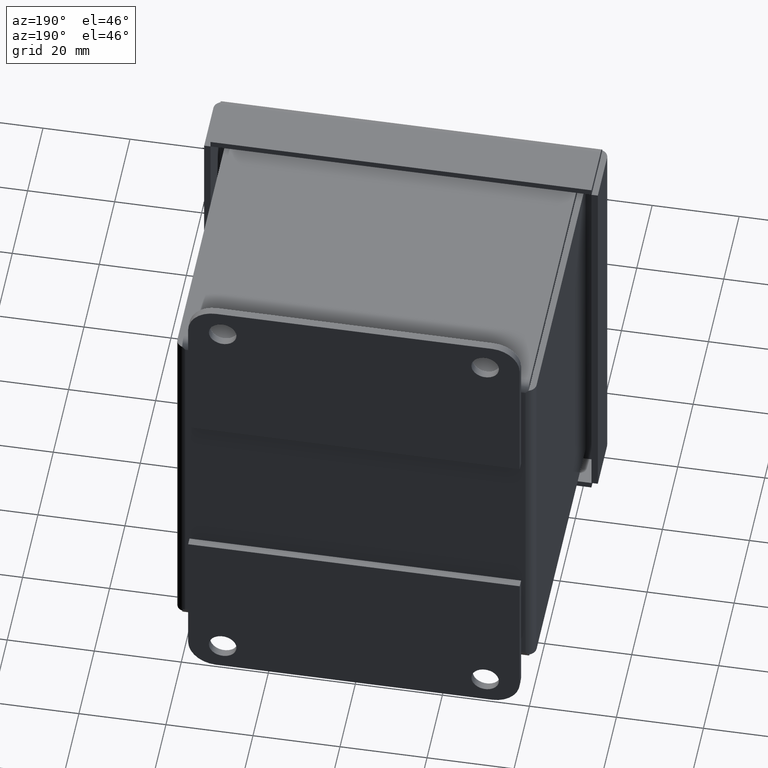
[diagram: clean part render]
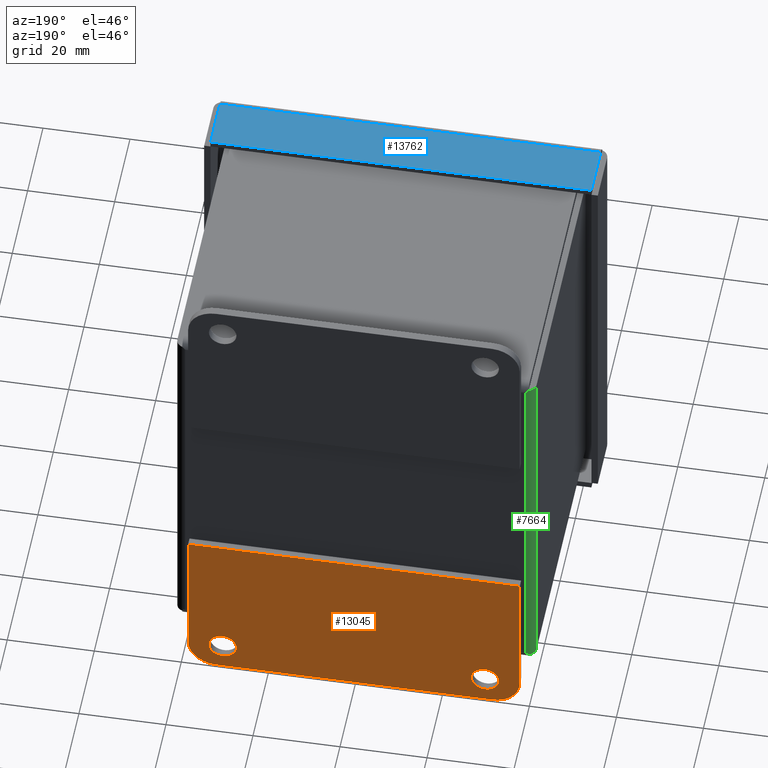
[diagram: same view with three faces highlighted in distinct colors, each labeled with its STEP entity id]
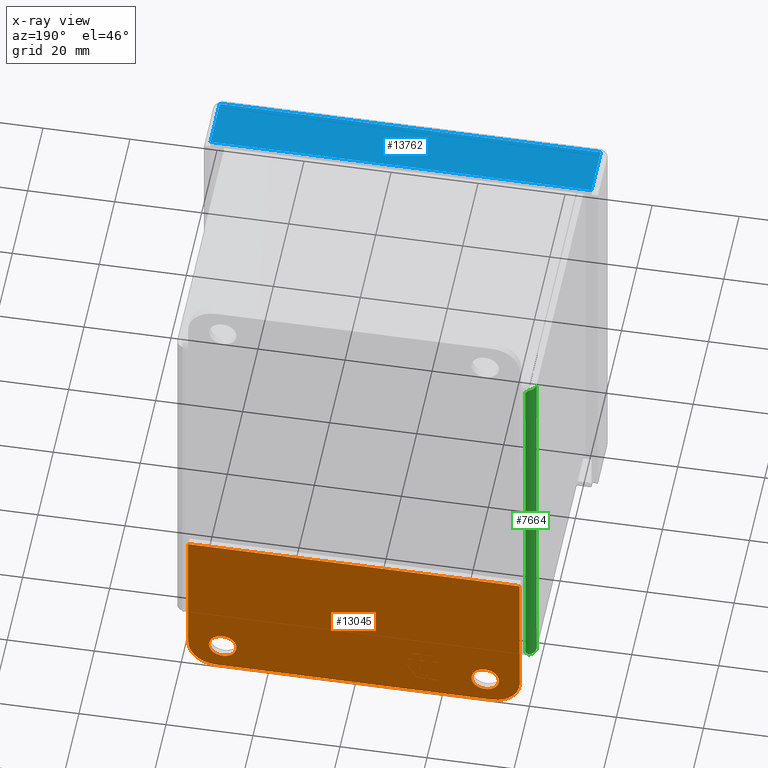
[diagram: x-ray of the same camera — body ghosted, the three highlighted faces saturated]
A machine part, auxiliary view with three faces highlighted in distinct colors.
The next image is the same camera in x-ray (body ghosted, the three faces saturated) — at least one of them is partly hidden behind the body in this view.
Their STEP definitions:

[orange] entity #13045 — the highlighted planar face has unit normal (0, 1, -0).
#64 = DIRECTION ( 'NONE',  ( 1.000000000000000000, -2.731847993664262725E-16, 0.0000000000000000000 ) ) ;
#83 = VECTOR ( 'NONE', #7194, 39.37007874015748143 ) ;
#97 = VECTOR ( 'NONE', #11660, 39.37007874015748143 ) ;
#181 = VERTEX_POINT ( 'NONE', #6197 ) ;
#269 = EDGE_CURVE ( 'NONE', #10582, #181, #4074, .T. ) ;
#354 = DIRECTION ( 'NONE',  ( 2.723529352635569909E-16, 1.000000000000000000, -2.106062720053089898E-16 ) ) ;
#583 = ORIENTED_EDGE ( 'NONE', *, *, #4471, .T. ) ;
#679 = CARTESIAN_POINT ( 'NONE',  ( 1.499999999999998002, 0.07199999999999971700, -2.000000000000000444 ) ) ;
#869 = CARTESIAN_POINT ( 'NONE',  ( -1.500000000000001998, 0.07200000000000053579, -2.000000000000000000 ) ) ;
#935 = DIRECTION ( 'NONE',  ( 2.272474258177640440E-16, 2.106062720053089158E-16, 1.000000000000000000 ) ) ;
#1052 = AXIS2_PLACEMENT_3D ( 'NONE', #12201, #9068, #3677 ) ;
#1094 = VERTEX_POINT ( 'NONE', #1204 ) ;
#1100 = DIRECTION ( 'NONE',  ( 1.000000000000000000, -2.731847993664262725E-16, 0.0000000000000000000 ) ) ;
#1153 = ORIENTED_EDGE ( 'NONE', *, *, #11666, .T. ) ;
#1199 = ORIENTED_EDGE ( 'NONE', *, *, #13260, .T. ) ;
#1204 = CARTESIAN_POINT ( 'NONE',  ( 1.062499999999998002, 0.07199999999999984190, -2.000000000000000444 ) ) ;
#1266 = VERTEX_POINT ( 'NONE', #8545 ) ;
#1312 = VECTOR ( 'NONE', #11559, 39.37007874015748143 ) ;
#1930 = LINE ( 'NONE', #869, #5710 ) ;
#1944 = AXIS2_PLACEMENT_3D ( 'NONE', #13179, #354, #7568 ) ;
#2197 = ORIENTED_EDGE ( 'NONE', *, *, #269, .T. ) ;
#2207 = ORIENTED_EDGE ( 'NONE', *, *, #5866, .T. ) ;
#2636 = CIRCLE ( 'NONE', #4449, 0.2500000000000000555 ) ;
#2914 = DIRECTION ( 'NONE',  ( -2.723529352635569909E-16, -1.000000000000000000, 2.106062720053089898E-16 ) ) ;
#3046 = CARTESIAN_POINT ( 'NONE',  ( 1.249999999999998224, 0.07200000000000005007, -0.7500000000000003331 ) ) ;
#3080 = EDGE_CURVE ( 'NONE', #13169, #6467, #1930, .T. ) ;
#3300 = CARTESIAN_POINT ( 'NONE',  ( 1.187499999999998002, 0.07199999999999980027, -2.000000000000000444 ) ) ;
#3341 = ORIENTED_EDGE ( 'NONE', *, *, #11618, .T. ) ;
#3509 = EDGE_CURVE ( 'NONE', #7020, #11442, #11222, .T. ) ;
#3665 = ORIENTED_EDGE ( 'NONE', *, *, #3509, .T. ) ;
#3677 = DIRECTION ( 'NONE',  ( 1.000000000000000000, -2.731847993664262725E-16, 0.0000000000000000000 ) ) ;
#4074 = LINE ( 'NONE', #14014, #97 ) ;
#4294 = DIRECTION ( 'NONE',  ( -2.723529352635569909E-16, -1.000000000000000000, 2.106062720053089898E-16 ) ) ;
#4449 = AXIS2_PLACEMENT_3D ( 'NONE', #7494, #12961, #7220 ) ;
#4471 = EDGE_CURVE ( 'NONE', #1094, #1266, #12984, .T. ) ;
#4977 = CARTESIAN_POINT ( 'NONE',  ( 1.249999999999997780, 0.07199999999999978639, -2.000000000000000444 ) ) ;
#5041 = FACE_BOUND ( 'NONE', #11614, .T. ) ;
#5388 = CIRCLE ( 'NONE', #13325, 0.1250000000000000278 ) ;
#5446 = ORIENTED_EDGE ( 'NONE', *, *, #13321, .T. ) ;
#5509 = CARTESIAN_POINT ( 'NONE',  ( 1.499999999999998002, 0.07199999999999971700, -2.000000000000000444 ) ) ;
#5710 = VECTOR ( 'NONE', #935, 39.37007874015748143 ) ;
#5836 = DIRECTION ( 'NONE',  ( -1.000000000000000000, 2.723529352635570402E-16, 2.272474258177639947E-16 ) ) ;
#5866 = EDGE_CURVE ( 'NONE', #11398, #7808, #11383, .T. ) ;
#5940 = EDGE_LOOP ( 'NONE', ( #2197, #5446, #12476, #3341, #2207, #1199 ) ) ;
#5964 = FACE_OUTER_BOUND ( 'NONE', #5940, .T. ) ;
#6007 = CARTESIAN_POINT ( 'NONE',  ( -1.062500000000002220, 0.07200000000000042477, -2.000000000000000000 ) ) ;
#6046 = CARTESIAN_POINT ( 'NONE',  ( -1.312500000000002220, 0.07200000000000049416, -1.999999999999999778 ) ) ;
#6099 = PLANE ( 'NONE',  #11246 ) ;
#6197 = CARTESIAN_POINT ( 'NONE',  ( -1.250000000000002220, 0.07200000000000042477, -2.249999999999999556 ) ) ;
#6467 = VERTEX_POINT ( 'NONE', #7657 ) ;
#7020 = VERTEX_POINT ( 'NONE', #6007 ) ;
#7194 = DIRECTION ( 'NONE',  ( -2.272474258177640440E-16, -2.106062720053089158E-16, -1.000000000000000000 ) ) ;
#7220 = DIRECTION ( 'NONE',  ( -1.000000000000000000, 2.731847993664262725E-16, 0.0000000000000000000 ) ) ;
#7494 = CARTESIAN_POINT ( 'NONE',  ( 1.249999999999997780, 0.07199999999999978639, -2.000000000000000444 ) ) ;
#7568 = DIRECTION ( 'NONE',  ( -1.000000000000000000, 2.731847993664262725E-16, 0.0000000000000000000 ) ) ;
#7657 = CARTESIAN_POINT ( 'NONE',  ( -1.500000000000001776, 0.07200000000000079947, -0.7499999999999997780 ) ) ;
#7808 = VERTEX_POINT ( 'NONE', #5509 ) ;
#8068 = CIRCLE ( 'NONE', #1944, 0.2500000000000000555 ) ;
#8160 = DIRECTION ( 'NONE',  ( 1.000000000000000000, -2.731847993664262725E-16, 0.0000000000000000000 ) ) ;
#8212 = FACE_BOUND ( 'NONE', #10990, .T. ) ;
#8545 = CARTESIAN_POINT ( 'NONE',  ( 1.312499999999998002, 0.07199999999999977252, -2.000000000000000444 ) ) ;
#8575 = LINE ( 'NONE', #3046, #1312 ) ;
#9068 = DIRECTION ( 'NONE',  ( -2.723529352635569909E-16, -1.000000000000000000, 2.106062720053089898E-16 ) ) ;
#9642 = AXIS2_PLACEMENT_3D ( 'NONE', #13568, #13772, #8160 ) ;
#10214 = EDGE_CURVE ( 'NONE', #1266, #1094, #12827, .T. ) ;
#10582 = VERTEX_POINT ( 'NONE', #12191 ) ;
#10626 = CARTESIAN_POINT ( 'NONE',  ( -1.500000000000001998, 0.07200000000000053579, -2.000000000000000000 ) ) ;
#10941 = CARTESIAN_POINT ( 'NONE',  ( 1.499999999999998224, 0.07199999999999998068, -0.7500000000000002220 ) ) ;
#10990 = EDGE_LOOP ( 'NONE', ( #12008, #583 ) ) ;
#11222 = CIRCLE ( 'NONE', #9642, 0.1250000000000000278 ) ;
#11246 = AXIS2_PLACEMENT_3D ( 'NONE', #4977, #12547, #5836 ) ;
#11383 = LINE ( 'NONE', #679, #83 ) ;
#11398 = VERTEX_POINT ( 'NONE', #10941 ) ;
#11442 = VERTEX_POINT ( 'NONE', #6046 ) ;
#11559 = DIRECTION ( 'NONE',  ( 1.000000000000000000, -2.723529352635570402E-16, -2.272474258177639947E-16 ) ) ;
#11614 = EDGE_LOOP ( 'NONE', ( #3665, #1153 ) ) ;
#11618 = EDGE_CURVE ( 'NONE', #6467, #11398, #8575, .T. ) ;
#11660 = DIRECTION ( 'NONE',  ( -1.000000000000000000, 2.723529352635570402E-16, 2.272474258177639947E-16 ) ) ;
#11666 = EDGE_CURVE ( 'NONE', #11442, #7020, #5388, .T. ) ;
#12008 = ORIENTED_EDGE ( 'NONE', *, *, #10214, .T. ) ;
#12191 = CARTESIAN_POINT ( 'NONE',  ( 1.249999999999997780, 0.07199999999999973088, -2.250000000000000444 ) ) ;
#12201 = CARTESIAN_POINT ( 'NONE',  ( 1.187499999999998002, 0.07199999999999980027, -2.000000000000000444 ) ) ;
#12321 = AXIS2_PLACEMENT_3D ( 'NONE', #3300, #4294, #1100 ) ;
#12476 = ORIENTED_EDGE ( 'NONE', *, *, #3080, .T. ) ;
#12547 = DIRECTION ( 'NONE',  ( 2.723529352635569909E-16, 1.000000000000000000, -2.106062720053089898E-16 ) ) ;
#12633 = CARTESIAN_POINT ( 'NONE',  ( -1.187500000000002220, 0.07200000000000045253, -2.000000000000000000 ) ) ;
#12827 = CIRCLE ( 'NONE', #1052, 0.1250000000000000278 ) ;
#12961 = DIRECTION ( 'NONE',  ( 2.723529352635569909E-16, 1.000000000000000000, -2.106062720053089898E-16 ) ) ;
#12984 = CIRCLE ( 'NONE', #12321, 0.1250000000000000278 ) ;
#13045 = ADVANCED_FACE ( 'NONE', ( #5964, #8212, #5041 ), #6099, .T. ) ;
#13169 = VERTEX_POINT ( 'NONE', #10626 ) ;
#13179 = CARTESIAN_POINT ( 'NONE',  ( -1.250000000000002220, 0.07200000000000046640, -2.000000000000000000 ) ) ;
#13260 = EDGE_CURVE ( 'NONE', #7808, #10582, #2636, .T. ) ;
#13321 = EDGE_CURVE ( 'NONE', #181, #13169, #8068, .T. ) ;
#13325 = AXIS2_PLACEMENT_3D ( 'NONE', #12633, #2914, #64 ) ;
#13568 = CARTESIAN_POINT ( 'NONE',  ( -1.187500000000002220, 0.07200000000000045253, -2.000000000000000000 ) ) ;
#13772 = DIRECTION ( 'NONE',  ( -2.723529352635569909E-16, -1.000000000000000000, 2.106062720053089898E-16 ) ) ;
#14014 = CARTESIAN_POINT ( 'NONE',  ( 1.249999999999997780, 0.07199999999999973088, -2.250000000000000444 ) ) ;

[blue] entity #13762 — the highlighted planar face has unit normal (-0, -0, -1).
#23 = CARTESIAN_POINT ( 'NONE',  ( -1.723212598425196918, -2.343999999999994088, 1.906000000000001471 ) ) ;
#141 = EDGE_CURVE ( 'NONE', #241, #8612, #1740, .T. ) ;
#241 = VERTEX_POINT ( 'NONE', #23 ) ;
#528 = CARTESIAN_POINT ( 'NONE',  ( -1.723212598425196029, -2.820999999999995289, 1.906000000000001693 ) ) ;
#902 = EDGE_CURVE ( 'NONE', #4043, #8612, #11221, .T. ) ;
#1250 = CARTESIAN_POINT ( 'NONE',  ( -11.99400000000000155, -2.906999999999993367, 1.906000000000003025 ) ) ;
#1740 = LINE ( 'NONE', #5075, #7774 ) ;
#2148 = LINE ( 'NONE', #10805, #7661 ) ;
#2165 = DIRECTION ( 'NONE',  ( 1.000000000000000000, -1.820053914654879712E-16, -1.893102420351468194E-16 ) ) ;
#3211 = DIRECTION ( 'NONE',  ( 1.820053914654879712E-16, 1.000000000000000000, -2.077938280955059908E-16 ) ) ;
#3628 = EDGE_LOOP ( 'NONE', ( #13180, #4938, #3768, #13080 ) ) ;
#3768 = ORIENTED_EDGE ( 'NONE', *, *, #11764, .F. ) ;
#4043 = VERTEX_POINT ( 'NONE', #12893 ) ;
#4198 = CARTESIAN_POINT ( 'NONE',  ( 1.723212598425198028, -2.343999999999994532, 1.906000000000001027 ) ) ;
#4254 = VECTOR ( 'NONE', #12974, 39.37007874015748143 ) ;
#4255 = VECTOR ( 'NONE', #3211, 39.37007874015748143 ) ;
#4938 = ORIENTED_EDGE ( 'NONE', *, *, #141, .F. ) ;
#5075 = CARTESIAN_POINT ( 'NONE',  ( -11.99400000000000155, -2.343999999999993200, 1.906000000000003025 ) ) ;
#5616 = LINE ( 'NONE', #6586, #4254 ) ;
#6063 = AXIS2_PLACEMENT_3D ( 'NONE', #1250, #10896, #2165 ) ;
#6586 = CARTESIAN_POINT ( 'NONE',  ( -1.723212598425203357, -42.27707874015747791, 1.906000000000009686 ) ) ;
#6629 = PLANE ( 'NONE',  #6063 ) ;
#7367 = VERTEX_POINT ( 'NONE', #528 ) ;
#7661 = VECTOR ( 'NONE', #9740, 39.37007874015748143 ) ;
#7774 = VECTOR ( 'NONE', #10259, 39.37007874015748143 ) ;
#8612 = VERTEX_POINT ( 'NONE', #4198 ) ;
#9740 = DIRECTION ( 'NONE',  ( -1.000000000000000000, 1.820053914654880205E-16, 2.277637713848928370E-16 ) ) ;
#9762 = FACE_OUTER_BOUND ( 'NONE', #3628, .T. ) ;
#10259 = DIRECTION ( 'NONE',  ( 1.000000000000000000, -1.820053914654879712E-16, -1.665334536937739494E-16 ) ) ;
#10805 = CARTESIAN_POINT ( 'NONE',  ( 1.695000000000000728, -2.820999999999995733, 1.906000000000001249 ) ) ;
#10896 = DIRECTION ( 'NONE',  ( -1.893102420351468688E-16, -2.077938280955059661E-16, -1.000000000000000000 ) ) ;
#11221 = LINE ( 'NONE', #13935, #4255 ) ;
#11764 = EDGE_CURVE ( 'NONE', #7367, #241, #5616, .T. ) ;
#12519 = EDGE_CURVE ( 'NONE', #4043, #7367, #2148, .T. ) ;
#12893 = CARTESIAN_POINT ( 'NONE',  ( 1.723212598425197362, -2.820999999999996621, 1.906000000000001249 ) ) ;
#12974 = DIRECTION ( 'NONE',  ( 1.854710532216714695E-16, 1.000000000000000000, -2.077938280955059908E-16 ) ) ;
#13080 = ORIENTED_EDGE ( 'NONE', *, *, #12519, .F. ) ;
#13180 = ORIENTED_EDGE ( 'NONE', *, *, #902, .T. ) ;
#13762 = ADVANCED_FACE ( 'NONE', ( #9762 ), #6629, .F. ) ;
#13935 = CARTESIAN_POINT ( 'NONE',  ( 1.723212598425190256, -42.27707874015747791, 1.906000000000009020 ) ) ;

[green] entity #7664 — the highlighted cylindrical surface (edge-blend (fillet) strip) has radius 2.1844 mm, axis along (0, 0, -1).
#265 = DIRECTION ( 'NONE',  ( -1.159823381873250054E-17, -0.0000000000000000000, -1.000000000000000000 ) ) ;
#422 = CARTESIAN_POINT ( 'NONE',  ( -1.548908844346019942, -1.207049691147804862E-16, -1.673639801599725363 ) ) ;
#487 = CARTESIAN_POINT ( 'NONE',  ( -1.568000000000000282, -0.005037045508450068917, -1.692212598425196779 ) ) ;
#635 = FACE_OUTER_BOUND ( 'NONE', #11580, .T. ) ;
#751 = DIRECTION ( 'NONE',  ( -3.176567434493329168E-15, 1.000000000000000000, 0.0000000000000000000 ) ) ;
#776 = CIRCLE ( 'NONE', #3260, 0.08600000000000000699 ) ;
#815 = DIRECTION ( 'NONE',  ( -0.0000000000000000000, -6.123031769111889989E-17, 1.000000000000000000 ) ) ;
#1163 = EDGE_CURVE ( 'NONE', #2415, #9156, #7312, .T. ) ;
#1214 = DIRECTION ( 'NONE',  ( 0.0000000000000000000, 6.123031769111889989E-17, -1.000000000000000000 ) ) ;
#1512 = EDGE_CURVE ( 'NONE', #2415, #2582, #776, .T. ) ;
#1539 = DIRECTION ( 'NONE',  ( -0.0000000000000000000, -6.123031769111889989E-17, 1.000000000000000000 ) ) ;
#2415 = VERTEX_POINT ( 'NONE', #12350 ) ;
#2582 = VERTEX_POINT ( 'NONE', #6864 ) ;
#2624 = CARTESIAN_POINT ( 'NONE',  ( -1.539000000000001256, 3.122111992759157964E-15, -1.664000000000001478 ) ) ;
#3013 = CARTESIAN_POINT ( 'NONE',  ( -1.568000000000002059, -0.005037045508455203699, 1.692212598425196779 ) ) ;
#3174 = DIRECTION ( 'NONE',  ( 0.0000000000000000000, 6.123031769111889989E-17, -1.000000000000000000 ) ) ;
#3260 = AXIS2_PLACEMENT_3D ( 'NONE', #11253, #1539, #5874 ) ;
#3399 = ORIENTED_EDGE ( 'NONE', *, *, #10537, .T. ) ;
#3543 = CARTESIAN_POINT ( 'NONE',  ( -1.539000000000003920, 4.370956789862821150E-15, 1.663999999999997925 ) ) ;
#3747 = CARTESIAN_POINT ( 'NONE',  ( -1.539000000000001256, 3.122111992759157964E-15, -1.664000000000001478 ) ) ;
#3752 = VERTEX_POINT ( 'NONE', #2624 ) ;
#4473 = AXIS2_PLACEMENT_3D ( 'NONE', #8330, #815, #751 ) ;
#4594 = CARTESIAN_POINT ( 'NONE',  ( -1.625000000000000000, -0.08600000000000000699, -11.77700000000000102 ) ) ;
#4757 = CARTESIAN_POINT ( 'NONE',  ( -1.558671519606388278, -0.001695691019680819946, -1.683137402864427923 ) ) ;
#4813 = CARTESIAN_POINT ( 'NONE',  ( -1.625000000000000000, -0.08599999999999974332, -1.692212598425197001 ) ) ;
#4967 = CARTESIAN_POINT ( 'NONE',  ( -1.539000000000000146, -0.08600000000000000699, -1.664000000000000146 ) ) ;
#5186 = EDGE_CURVE ( 'NONE', #9156, #3752, #8486, .T. ) ;
#5555 = DIRECTION ( 'NONE',  ( 0.0000000000000000000, 1.000000000000000000, 0.0000000000000000000 ) ) ;
#5874 = DIRECTION ( 'NONE',  ( -3.176567434493329168E-15, 1.000000000000000000, 0.0000000000000000000 ) ) ;
#6615 =( BOUNDED_CURVE ( )  B_SPLINE_CURVE ( 3, ( #3747, #422, #4757, #487 ),
 .UNSPECIFIED., .F., .F. ) 
 B_SPLINE_CURVE_WITH_KNOTS ( ( 4, 4 ),
 ( 4.712388980384703885, 5.056339979452566524 ),
 .UNSPECIFIED. ) 
 CURVE ( )  GEOMETRIC_REPRESENTATION_ITEM ( )  RATIONAL_B_SPLINE_CURVE ( ( 1.000000000000000000, 0.9901657495367139905, 0.9901657495367139905, 1.000000000000000000 ) ) 
 REPRESENTATION_ITEM ( '' )  );
#6788 = LINE ( 'NONE', #4594, #8443 ) ;
#6843 = EDGE_CURVE ( 'NONE', #2582, #6880, #6788, .T. ) ;
#6864 = CARTESIAN_POINT ( 'NONE',  ( -1.624999999999999778, -0.08599999999999985434, 1.692212598425197001 ) ) ;
#6880 = VERTEX_POINT ( 'NONE', #4813 ) ;
#7137 = CARTESIAN_POINT ( 'NONE',  ( -1.539000000000003920, 4.370956789862821150E-15, 1.663999999999997925 ) ) ;
#7248 = CARTESIAN_POINT ( 'NONE',  ( -1.568000000000000282, -0.005037045508450068917, -1.692212598425196779 ) ) ;
#7312 =( BOUNDED_CURVE ( )  B_SPLINE_CURVE ( 3, ( #3013, #9406, #11535, #7137 ),
 .UNSPECIFIED., .F., .F. ) 
 B_SPLINE_CURVE_WITH_KNOTS ( ( 4, 4 ),
 ( 4.368437981316764862, 4.712388980384654147 ),
 .UNSPECIFIED. ) 
 CURVE ( )  GEOMETRIC_REPRESENTATION_ITEM ( )  RATIONAL_B_SPLINE_CURVE ( ( 1.000000000000000000, 0.9901657495367124362, 0.9901657495367124362, 1.000000000000000000 ) ) 
 REPRESENTATION_ITEM ( '' )  );
#7470 = ORIENTED_EDGE ( 'NONE', *, *, #1163, .T. ) ;
#7664 = ADVANCED_FACE ( 'NONE', ( #635 ), #8142, .T. ) ;
#8083 = CIRCLE ( 'NONE', #4473, 0.08600000000000000699 ) ;
#8142 = CYLINDRICAL_SURFACE ( 'NONE', #12464, 0.08600000000000000699 ) ;
#8199 = ORIENTED_EDGE ( 'NONE', *, *, #5186, .T. ) ;
#8330 = CARTESIAN_POINT ( 'NONE',  ( -1.539000000000000146, -0.08600000000000000699, -1.692212598425196779 ) ) ;
#8443 = VECTOR ( 'NONE', #265, 39.37007874015748143 ) ;
#8486 = LINE ( 'NONE', #13035, #10264 ) ;
#9156 = VERTEX_POINT ( 'NONE', #3543 ) ;
#9266 = ORIENTED_EDGE ( 'NONE', *, *, #6843, .F. ) ;
#9406 = CARTESIAN_POINT ( 'NONE',  ( -1.558671519606391831, -0.001695691019681729158, 1.683137402864427035 ) ) ;
#9666 = VERTEX_POINT ( 'NONE', #7248 ) ;
#9834 = ORIENTED_EDGE ( 'NONE', *, *, #1512, .F. ) ;
#10264 = VECTOR ( 'NONE', #3174, 39.37007874015748143 ) ;
#10537 = EDGE_CURVE ( 'NONE', #3752, #9666, #6615, .T. ) ;
#10743 = EDGE_CURVE ( 'NONE', #9666, #6880, #8083, .T. ) ;
#11253 = CARTESIAN_POINT ( 'NONE',  ( -1.539000000000000146, -0.08600000000000020128, 1.692212598425196779 ) ) ;
#11535 = CARTESIAN_POINT ( 'NONE',  ( -1.548908844346022606, -5.599555963385444454E-16, 1.673639801599724031 ) ) ;
#11580 = EDGE_LOOP ( 'NONE', ( #7470, #8199, #3399, #13773, #9266, #9834 ) ) ;
#12350 = CARTESIAN_POINT ( 'NONE',  ( -1.568000000000002059, -0.005037045508455203699, 1.692212598425196779 ) ) ;
#12464 = AXIS2_PLACEMENT_3D ( 'NONE', #4967, #1214, #5555 ) ;
#13035 = CARTESIAN_POINT ( 'NONE',  ( -1.539000000000000146, 0.0000000000000000000, -1.664000000000000146 ) ) ;
#13773 = ORIENTED_EDGE ( 'NONE', *, *, #10743, .T. ) ;